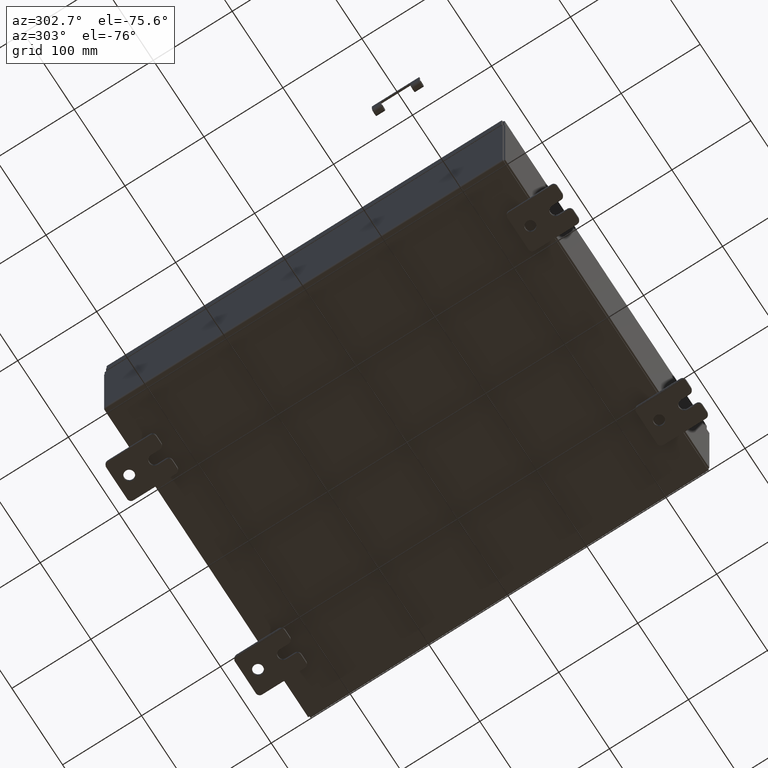
[diagram: clean part render]
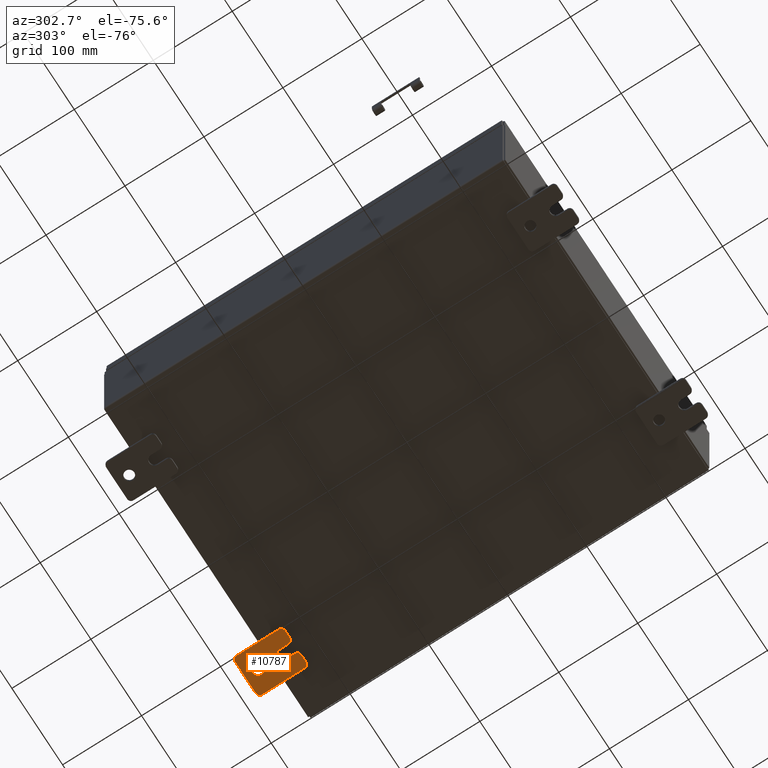
[diagram: same view with one face highlighted and labeled with its STEP entity id]
A machine part, auxiliary view. The second image highlights one B-rep face of the part: STEP entity #10787.
In plain terms, the highlighted planar face has unit normal (0, 0, 1).
Its self-contained STEP definition (entity closure, byte-faithful):
#1769 = CARTESIAN_POINT ( 'NONE',  ( -0.1879999999999997800, 1.059999999999996500, 0.9999999999999953400 ) ) ;
#2030 = DIRECTION ( 'NONE',  ( -6.556435184794182400E-016, -1.000000000000000000, -1.639108796198545600E-016 ) ) ;
#2246 = ORIENTED_EDGE ( 'NONE', *, *, #49098, .T. ) ;
#2321 = VERTEX_POINT ( 'NONE', #49759 ) ;
#2866 = DIRECTION ( 'NONE',  ( 0.0000000000000000000, -1.639108796198553600E-015, -1.000000000000000000 ) ) ;
#2918 = DIRECTION ( 'NONE',  ( 0.0000000000000000000, 0.0000000000000000000, -1.000000000000000000 ) ) ;
#3508 = VECTOR ( 'NONE', #44024, 39.37007874015748100 ) ;
#3702 = DIRECTION ( 'NONE',  ( -0.0000000000000000000, 0.0000000000000000000, -1.000000000000000000 ) ) ;
#3775 = DIRECTION ( 'NONE',  ( 0.0000000000000000000, 0.0000000000000000000, -1.000000000000000000 ) ) ;
#4344 = AXIS2_PLACEMENT_3D ( 'NONE', #24696, #58865, #29596 ) ;
#4489 = VERTEX_POINT ( 'NONE', #55645 ) ;
#4688 = AXIS2_PLACEMENT_3D ( 'NONE', #61357, #32104, #2918 ) ;
#6186 = VERTEX_POINT ( 'NONE', #22736 ) ;
#6779 = EDGE_CURVE ( 'NONE', #29254, #4489, #28122, .T. ) ;
#6817 = CARTESIAN_POINT ( 'NONE',  ( -0.1879999999999997800, -1.060000000000002100, 0.4400000000000016700 ) ) ;
#7351 = CARTESIAN_POINT ( 'NONE',  ( -0.1879999999999997800, -1.250000000000003100, 0.4400000000000020000 ) ) ;
#7932 = VERTEX_POINT ( 'NONE', #21649 ) ;
#8906 = ORIENTED_EDGE ( 'NONE', *, *, #6779, .T. ) ;
#8994 = CARTESIAN_POINT ( 'NONE',  ( -0.1880000000000001900, -0.6249999999999992200, -0.2499999999999998600 ) ) ;
#9680 = VERTEX_POINT ( 'NONE', #27050 ) ;
#9712 = CARTESIAN_POINT ( 'NONE',  ( -0.1879999999999997800, -1.250000000000005600, -1.000000000000006200 ) ) ;
#9868 = LINE ( 'NONE', #57608, #22767 ) ;
#9964 = CARTESIAN_POINT ( 'NONE',  ( -0.1879999999999997800, -1.060000000000004100, -0.8100000000000050500 ) ) ;
#10623 = EDGE_CURVE ( 'NONE', #20258, #2321, #27882, .T. ) ;
#10787 = ADVANCED_FACE ( 'NONE', ( #37821, #36284 ), #27968, .F. ) ;
#11697 = VECTOR ( 'NONE', #2030, 39.37007874015748100 ) ;
#11714 = DIRECTION ( 'NONE',  ( 0.0000000000000000000, 0.0000000000000000000, -1.000000000000000000 ) ) ;
#12192 = VECTOR ( 'NONE', #19471, 39.37007874015748100 ) ;
#13689 = EDGE_CURVE ( 'NONE', #30206, #34683, #23104, .T. ) ;
#13729 = LINE ( 'NONE', #9712, #12192 ) ;
#13730 = CIRCLE ( 'NONE', #21486, 0.1900000000000011100 ) ;
#13803 = EDGE_CURVE ( 'NONE', #45816, #58847, #20068, .T. ) ;
#14822 = CARTESIAN_POINT ( 'NONE',  ( -0.1880000000000005800, -1.250000000000003800, 0.2500000000000005000 ) ) ;
#14832 = DIRECTION ( 'NONE',  ( 0.0000000000000000000, 0.0000000000000000000, -1.000000000000000000 ) ) ;
#15030 = AXIS2_PLACEMENT_3D ( 'NONE', #27841, #62019, #32754 ) ;
#15634 = AXIS2_PLACEMENT_3D ( 'NONE', #20378, #54505, #25274 ) ;
#16586 = CARTESIAN_POINT ( 'NONE',  ( -0.1879999999999997800, -1.060000000000001200, 0.9999999999999988900 ) ) ;
#16872 = ORIENTED_EDGE ( 'NONE', *, *, #60406, .F. ) ;
#17265 = DIRECTION ( 'NONE',  ( 1.000000000000000000, -0.0000000000000000000, -5.163192708025532000E-017 ) ) ;
#18854 = CARTESIAN_POINT ( 'NONE',  ( -0.1880000000000004700, -1.060000000000003400, -0.2499999999999994400 ) ) ;
#18950 = DIRECTION ( 'NONE',  ( 0.0000000000000000000, -1.000000000000000000, 1.639108796198558100E-015 ) ) ;
#19323 = ORIENTED_EDGE ( 'NONE', *, *, #36473, .T. ) ;
#19471 = DIRECTION ( 'NONE',  ( 0.0000000000000000000, 1.000000000000000000, -1.639108796198558100E-015 ) ) ;
#19751 = EDGE_CURVE ( 'NONE', #62793, #4489, #53684, .T. ) ;
#19968 = DIRECTION ( 'NONE',  ( -1.000000000000000000, -0.0000000000000000000, 0.0000000000000000000 ) ) ;
#20068 = LINE ( 'NONE', #56369, #44466 ) ;
#20258 = VERTEX_POINT ( 'NONE', #40284 ) ;
#20378 = CARTESIAN_POINT ( 'NONE',  ( -0.1879999999999997800, 1.059999999999993600, -0.8100000000000089400 ) ) ;
#21486 = AXIS2_PLACEMENT_3D ( 'NONE', #9964, #44037, #14832 ) ;
#21649 = CARTESIAN_POINT ( 'NONE',  ( -0.1879999999999997800, -1.060000000000004500, -1.000000000000006400 ) ) ;
#21818 = CARTESIAN_POINT ( 'NONE',  ( -0.1880000000000001900, -0.6249999999999992200, -0.2499999999999993900 ) ) ;
#22591 = ORIENTED_EDGE ( 'NONE', *, *, #13689, .F. ) ;
#22736 = CARTESIAN_POINT ( 'NONE',  ( -0.1880000000000010000, 0.6249999999999992200, -0.2499999999999999200 ) ) ;
#22767 = VECTOR ( 'NONE', #33272, 39.37007874015748100 ) ;
#22949 = CARTESIAN_POINT ( 'NONE',  ( -0.1879999999999997800, -1.250000000000004700, -0.4400000000000002200 ) ) ;
#23104 = LINE ( 'NONE', #21818, #11697 ) ;
#23150 = ORIENTED_EDGE ( 'NONE', *, *, #10623, .F. ) ;
#24696 = CARTESIAN_POINT ( 'NONE',  ( -0.1880000000000001900, -0.6249999999999992200, 6.829619984160658000E-017 ) ) ;
#25274 = DIRECTION ( 'NONE',  ( 0.0000000000000000000, 0.0000000000000000000, -1.000000000000000000 ) ) ;
#25364 = ORIENTED_EDGE ( 'NONE', *, *, #25895, .F. ) ;
#25895 = EDGE_CURVE ( 'NONE', #45679, #9680, #9868, .T. ) ;
#27050 = CARTESIAN_POINT ( 'NONE',  ( -0.1879999999999997800, -1.250000000000005300, -0.8100000000000047200 ) ) ;
#27074 = CARTESIAN_POINT ( 'NONE',  ( -0.1879999999999997800, 1.249999999999994200, -1.000000000000010400 ) ) ;
#27472 = ORIENTED_EDGE ( 'NONE', *, *, #53179, .F. ) ;
#27494 = ORIENTED_EDGE ( 'NONE', *, *, #36451, .T. ) ;
#27720 = VECTOR ( 'NONE', #36917, 39.37007874015748100 ) ;
#27841 = CARTESIAN_POINT ( 'NONE',  ( -0.1880000000000010000, 0.6249999999999992200, -7.703811342100550500E-020 ) ) ;
#27882 = LINE ( 'NONE', #14822, #3508 ) ;
#27968 = PLANE ( 'NONE',  #62447 ) ;
#27986 = ORIENTED_EDGE ( 'NONE', *, *, #58447, .T. ) ;
#28122 = CIRCLE ( 'NONE', #4688, 0.1900000000000011100 ) ;
#28551 = CIRCLE ( 'NONE', #15634, 0.1900000000000011100 ) ;
#29254 = VERTEX_POINT ( 'NONE', #1769 ) ;
#29516 = CARTESIAN_POINT ( 'NONE',  ( -0.1879999999999997800, 1.059999999999993400, -1.000000000000010000 ) ) ;
#29596 = DIRECTION ( 'NONE',  ( -6.829619984160660000E-016, -1.000000000000000000, 0.0000000000000000000 ) ) ;
#30052 = CARTESIAN_POINT ( 'NONE',  ( -0.1880000000000010000, 0.6249999999999992200, 0.2499999999999999200 ) ) ;
#30206 = VERTEX_POINT ( 'NONE', #8994 ) ;
#30526 = VERTEX_POINT ( 'NONE', #30052 ) ;
#30721 = EDGE_CURVE ( 'NONE', #20258, #58847, #60785, .T. ) ;
#31373 = AXIS2_PLACEMENT_3D ( 'NONE', #62242, #32967, #3775 ) ;
#32104 = DIRECTION ( 'NONE',  ( -1.000000000000000000, -0.0000000000000000000, 0.0000000000000000000 ) ) ;
#32754 = DIRECTION ( 'NONE',  ( 0.0000000000000000000, 0.0000000000000000000, -1.000000000000000000 ) ) ;
#32822 = EDGE_CURVE ( 'NONE', #45816, #38378, #60260, .T. ) ;
#32892 = DIRECTION ( 'NONE',  ( 1.000000000000000000, 0.0000000000000000000, -0.0000000000000000000 ) ) ;
#32967 = DIRECTION ( 'NONE',  ( -1.000000000000000000, -0.0000000000000000000, 0.0000000000000000000 ) ) ;
#33272 = DIRECTION ( 'NONE',  ( 0.0000000000000000000, -1.639108796198553600E-015, -1.000000000000000000 ) ) ;
#33736 = AXIS2_PLACEMENT_3D ( 'NONE', #49211, #19968, #54086 ) ;
#34683 = VERTEX_POINT ( 'NONE', #18854 ) ;
#35771 = ORIENTED_EDGE ( 'NONE', *, *, #32822, .T. ) ;
#35814 = ORIENTED_EDGE ( 'NONE', *, *, #40747, .T. ) ;
#36284 = FACE_OUTER_BOUND ( 'NONE', #57343, .T. ) ;
#36451 = EDGE_CURVE ( 'NONE', #30526, #6186, #52467, .T. ) ;
#36473 = EDGE_CURVE ( 'NONE', #45679, #34683, #50940, .T. ) ;
#36917 = DIRECTION ( 'NONE',  ( 0.0000000000000000000, 1.639108796198553600E-015, 1.000000000000000000 ) ) ;
#37821 = FACE_BOUND ( 'NONE', #58728, .T. ) ;
#38378 = VERTEX_POINT ( 'NONE', #16586 ) ;
#38405 = ORIENTED_EDGE ( 'NONE', *, *, #13803, .F. ) ;
#39369 = CIRCLE ( 'NONE', #52210, 0.2499999999999999200 ) ;
#39435 = CARTESIAN_POINT ( 'NONE',  ( -0.1879999999999997800, 1.249999999999997600, 0.9999999999999951200 ) ) ;
#40284 = CARTESIAN_POINT ( 'NONE',  ( -0.1880000000000004700, -1.060000000000002100, 0.2500000000000005000 ) ) ;
#40747 = EDGE_CURVE ( 'NONE', #62793, #59924, #28551, .T. ) ;
#40901 = DIRECTION ( 'NONE',  ( -1.000000000000000000, -0.0000000000000000000, 0.0000000000000000000 ) ) ;
#43015 = VECTOR ( 'NONE', #18950, 39.37007874015748100 ) ;
#44024 = DIRECTION ( 'NONE',  ( 6.556435184794182400E-016, 1.000000000000000000, 0.0000000000000000000 ) ) ;
#44037 = DIRECTION ( 'NONE',  ( -1.000000000000000000, -0.0000000000000000000, 0.0000000000000000000 ) ) ;
#44466 = VECTOR ( 'NONE', #2866, 39.37007874015748100 ) ;
#45679 = VERTEX_POINT ( 'NONE', #22949 ) ;
#45816 = VERTEX_POINT ( 'NONE', #57757 ) ;
#46464 = CARTESIAN_POINT ( 'NONE',  ( -0.1880000000000010000, 0.6249999999999992200, -7.703811342100550500E-020 ) ) ;
#46556 = CIRCLE ( 'NONE', #4344, 0.2499999999999999200 ) ;
#49058 = ORIENTED_EDGE ( 'NONE', *, *, #30721, .T. ) ;
#49098 = EDGE_CURVE ( 'NONE', #6186, #30526, #39369, .T. ) ;
#49211 = CARTESIAN_POINT ( 'NONE',  ( -0.1879999999999997800, -1.060000000000001600, 0.8099999999999978300 ) ) ;
#49759 = CARTESIAN_POINT ( 'NONE',  ( -0.1880000000000001900, -0.6249999999999992200, 0.2500000000000005000 ) ) ;
#50263 = ORIENTED_EDGE ( 'NONE', *, *, #57509, .F. ) ;
#50940 = CIRCLE ( 'NONE', #31373, 0.1900000000000011100 ) ;
#51364 = DIRECTION ( 'NONE',  ( 0.0000000000000000000, 0.0000000000000000000, -1.000000000000000000 ) ) ;
#52210 = AXIS2_PLACEMENT_3D ( 'NONE', #46464, #17265, #51364 ) ;
#52467 = CIRCLE ( 'NONE', #15030, 0.2499999999999999200 ) ;
#53179 = EDGE_CURVE ( 'NONE', #29254, #38378, #54473, .T. ) ;
#53684 = LINE ( 'NONE', #27074, #27720 ) ;
#54086 = DIRECTION ( 'NONE',  ( 0.0000000000000000000, 7.189073667537492800E-016, -1.000000000000000000 ) ) ;
#54473 = LINE ( 'NONE', #39435, #43015 ) ;
#54505 = DIRECTION ( 'NONE',  ( -1.000000000000000000, -0.0000000000000000000, 0.0000000000000000000 ) ) ;
#55645 = CARTESIAN_POINT ( 'NONE',  ( -0.1879999999999997800, 1.249999999999997300, 0.8099999999999935000 ) ) ;
#56369 = CARTESIAN_POINT ( 'NONE',  ( -0.1879999999999997800, -1.250000000000002200, 0.9999999999999992200 ) ) ;
#56785 = CARTESIAN_POINT ( 'NONE',  ( -0.1879999999999997800, 0.0000000000000000000, 0.0000000000000000000 ) ) ;
#57343 = EDGE_LOOP ( 'NONE', ( #38405, #35771, #27472, #8906, #61899, #35814, #16872, #27986, #25364, #19323, #22591, #50263, #23150, #49058 ) ) ;
#57366 = AXIS2_PLACEMENT_3D ( 'NONE', #6817, #40901, #11714 ) ;
#57509 = EDGE_CURVE ( 'NONE', #2321, #30206, #46556, .T. ) ;
#57608 = CARTESIAN_POINT ( 'NONE',  ( -0.1879999999999997800, -1.250000000000002200, 0.9999999999999992200 ) ) ;
#57757 = CARTESIAN_POINT ( 'NONE',  ( -0.1879999999999997800, -1.250000000000002400, 0.8099999999999980500 ) ) ;
#58447 = EDGE_CURVE ( 'NONE', #7932, #9680, #13730, .T. ) ;
#58728 = EDGE_LOOP ( 'NONE', ( #2246, #27494 ) ) ;
#58847 = VERTEX_POINT ( 'NONE', #7351 ) ;
#58865 = DIRECTION ( 'NONE',  ( -1.000000000000000000, 6.523827964459549700E-016, 5.163192708025532000E-017 ) ) ;
#59924 = VERTEX_POINT ( 'NONE', #29516 ) ;
#60260 = CIRCLE ( 'NONE', #33736, 0.1900000000000011100 ) ;
#60406 = EDGE_CURVE ( 'NONE', #7932, #59924, #13729, .T. ) ;
#60785 = CIRCLE ( 'NONE', #57366, 0.1900000000000011400 ) ;
#61357 = CARTESIAN_POINT ( 'NONE',  ( -0.1879999999999997800, 1.059999999999996300, 0.8099999999999938400 ) ) ;
#61899 = ORIENTED_EDGE ( 'NONE', *, *, #19751, .F. ) ;
#62019 = DIRECTION ( 'NONE',  ( 1.000000000000000000, -0.0000000000000000000, -5.163192708025532000E-017 ) ) ;
#62160 = CARTESIAN_POINT ( 'NONE',  ( -0.1879999999999997800, 1.249999999999994700, -0.8100000000000092700 ) ) ;
#62242 = CARTESIAN_POINT ( 'NONE',  ( -0.1879999999999997800, -1.060000000000003400, -0.4400000000000005000 ) ) ;
#62447 = AXIS2_PLACEMENT_3D ( 'NONE', #56785, #32892, #3702 ) ;
#62793 = VERTEX_POINT ( 'NONE', #62160 ) ;